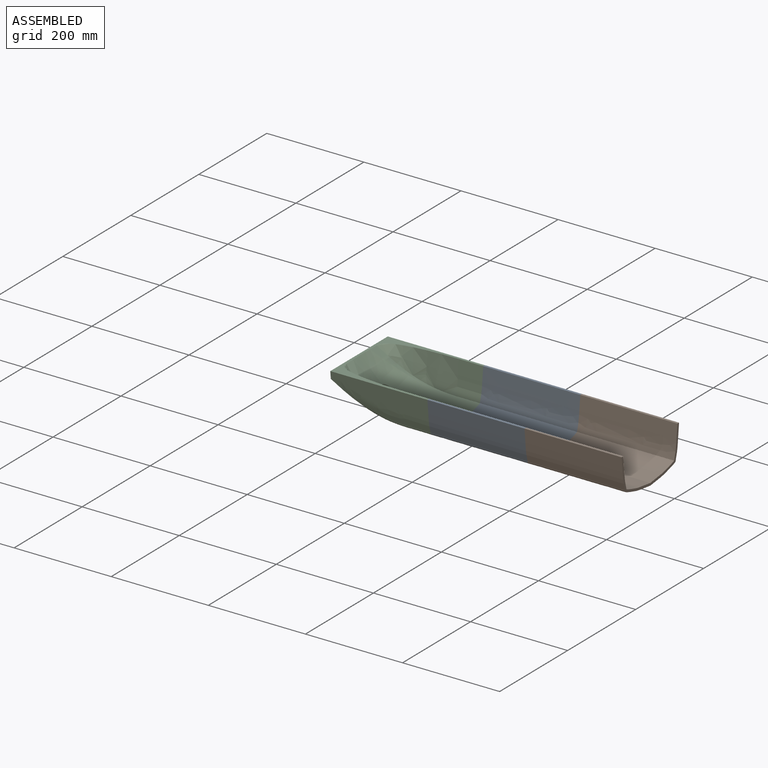
[diagram: assembled view]
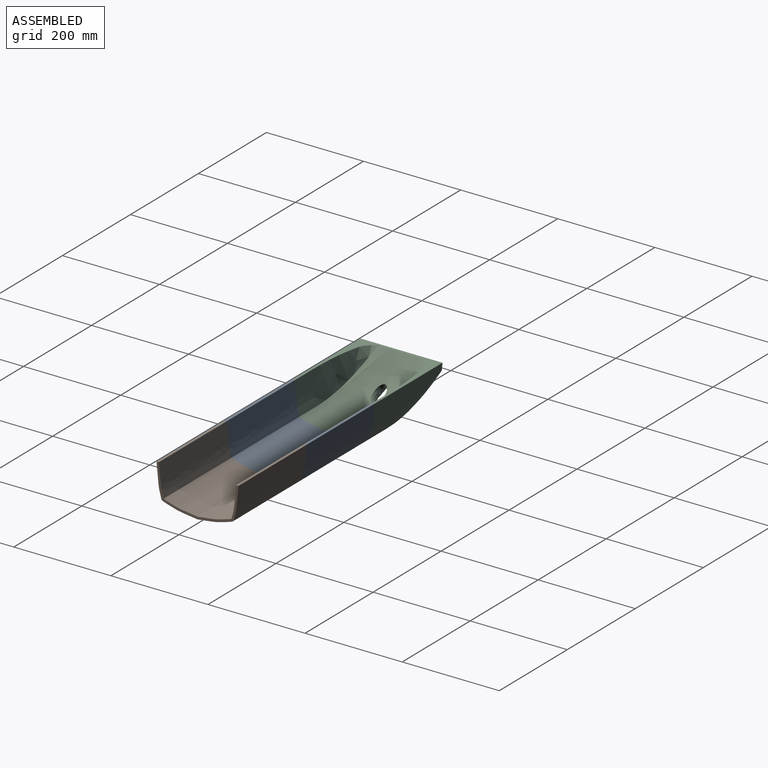
[diagram: assembled view, second angle]
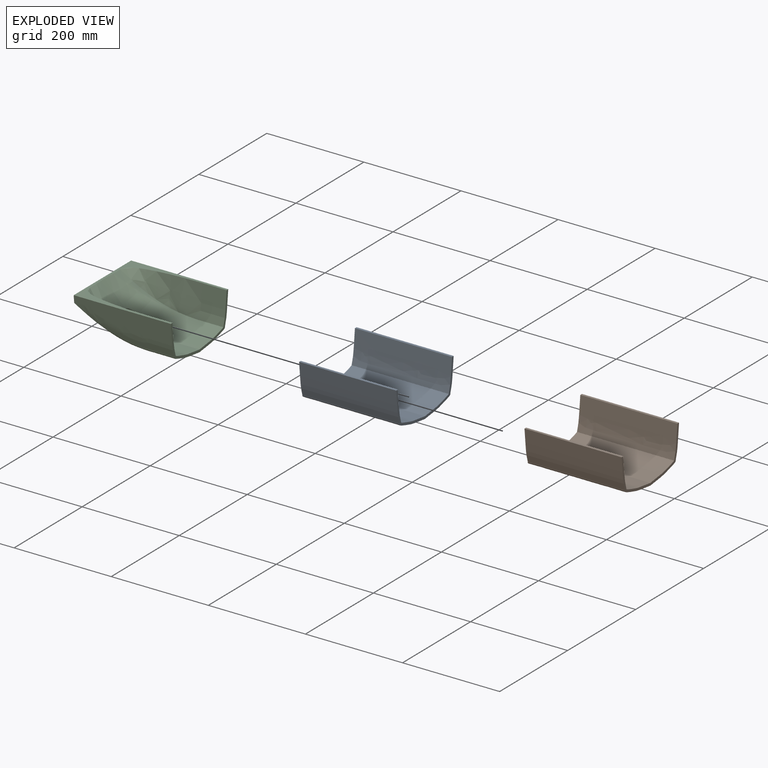
[diagram: exploded view]
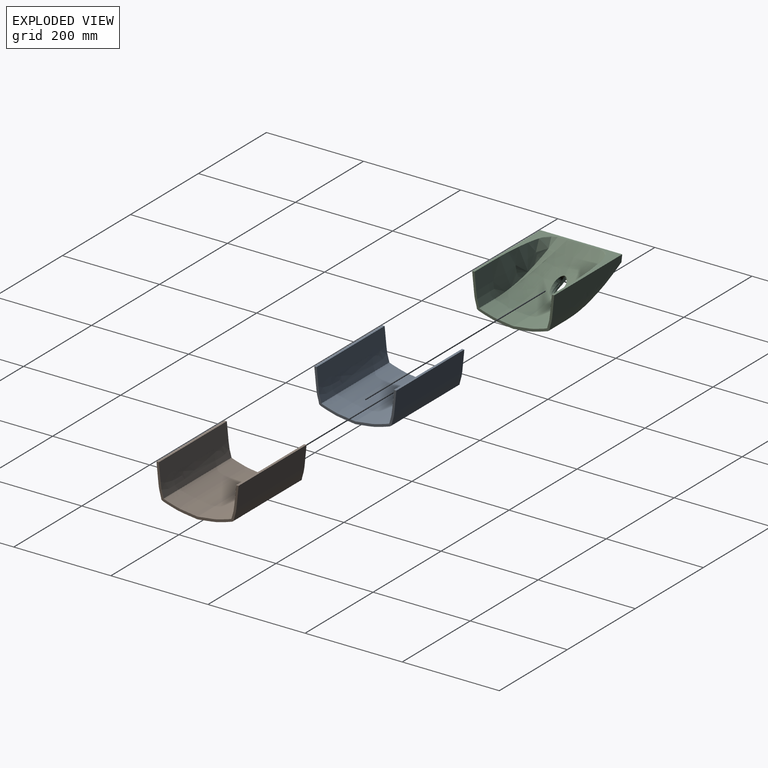
[diagram: exploded view, second angle]
ASSEMBLY  parts=3 mates=2
PART A: 22 faces, bbox 205.3x175.3x95.3 mm
  f0: plane 174.65x90.86mm, normal (-1,0,0), area 1387.7mm2, adj f2,f3,f4,f5,f6,f7,f16,f17
  f1: plane 174.76x91.6mm, normal (1,0,0), area 1408.3mm2, adj f2,f3,f4,f5,f6,f7,f12,f13
  f2: bspline ~200x69.05mm, area 13175.8mm2, adj f0,f1,f8,f12,f17,f21
  f3: bspline ~200x70mm, area 13168.8mm2, adj f0,f1,f7,f21
  f4: bspline ~200x69.05mm, area 13175.8mm2, adj f0,f1,f9,f14,f18,f20
  f5: bspline ~200x70mm, area 13168.8mm2, adj f0,f1,f6,f20
  f6: extruded ~200x75mm, area 15975.7mm2, adj f0,f1,f5,f7
  f7: extruded ~200x75mm, area 15975.7mm2, adj f0,f1,f3,f6
  f8: extruded ~190x0.1mm, area 19.6mm2, adj f2,f11,f12,f17
  f9: extruded ~190x0.1mm, area 19.6mm2, adj f4,f10,f14,f18
  f10: extruded ~190x70mm, area 13653.4mm2, adj f9,f11,f13,f19
  f11: extruded ~190x70mm, area 13653.4mm2, adj f8,f10,f15,f16
  f12: extruded ~5x0.1mm, area 0.5mm2, adj f1,f2,f8,f15
  f13: extruded ~70x14.85mm, area 359.2mm2, adj f1,f10,f14,f15
  f14: extruded ~5x0.1mm, area 0.5mm2, adj f1,f4,f9,f13
  f15: extruded ~70x14.85mm, area 359.2mm2, adj f1,f11,f12,f13
  f16: extruded ~70x14.85mm, area 359.2mm2, adj f0,f11,f17,f19
  f17: extruded ~5x0.1mm, area 0.5mm2, adj f0,f2,f8,f16
  f18: extruded ~5x0.1mm, area 0.5mm2, adj f0,f4,f9,f19
  f19: extruded ~70x14.85mm, area 359.2mm2, adj f0,f10,f16,f18
  f20: plane 200x4.82mm, normal (0,0,1), area 963.2mm2, adj f0,f1,f4,f5
  f21: plane 200x4.82mm, normal (0,0,1), area 963.3mm2, adj f0,f1,f2,f3
PART B: same geometry as A
PART C: 34 faces, bbox 251.7x221.7x141.7 mm
  f0: plane 174.65x90.86mm, normal (-1,0,0), area 1387.7mm2, adj f1,f2,f3,f4,f14,f15,f24,f25
  f1: bspline ~69.05x50mm, area 3294mm2, adj f0,f6,f16,f20,f25,f30
  f2: bspline ~70x50mm, area 3292.2mm2, adj f0,f13,f15,f30
  f3: bspline ~69.05x50mm, area 3294mm2, adj f0,f11,f17,f22,f26,f30
  f4: bspline ~70x50mm, area 3292.2mm2, adj f0,f12,f14,f30
  f5: plane 169.02x20.01mm, normal (1,0,0), area 2927.5mm2, adj f12,f13,f28,f29,f30
  f6: bspline ~144.7x69.64mm, area 4616mm2, adj f1,f7,f30
  f7: bspline ~150x70.1mm, area 1099.6mm2, adj f6,f8,f20,f30
  f8: bspline ~150x84.95mm, area 9413.9mm2, adj f7,f9,f23,f30,f32
  f9: bspline ~150x84.95mm, area 9413.9mm2, adj f8,f10,f21,f30,f33
  f10: bspline ~150x70.1mm, area 1099.6mm2, adj f9,f11,f22,f30
  f11: bspline ~144.7x69.64mm, area 4616mm2, adj f3,f10,f30
  f12: bspline ~150x70mm, area 7503.3mm2, adj f4,f5,f28,f30
  f13: bspline ~150x70mm, area 7502.9mm2, adj f2,f5,f29,f30
  f14: extruded ~75x50mm, area 3993.9mm2, adj f0,f4,f15,f28
  f15: extruded ~75x50mm, area 3993.9mm2, adj f0,f2,f14,f29
  f16: extruded ~40x0.1mm, area 4.1mm2, adj f1,f19,f20,f25
  f17: extruded ~40x0.1mm, area 4.1mm2, adj f3,f18,f22,f26
  f18: extruded ~70x40mm, area 2874.4mm2, adj f17,f19,f21,f27
  f19: extruded ~70x40mm, area 2874.4mm2, adj f16,f18,f23,f24
  f20: extruded ~5x0.1mm, area 0.5mm2, adj f1,f7,f16,f23
  f21: extruded ~70x14.85mm, area 359.2mm2, adj f9,f18,f22,f23
  f22: extruded ~5x0.1mm, area 0.5mm2, adj f3,f10,f17,f21
  f23: extruded ~70x14.85mm, area 359.2mm2, adj f8,f19,f20,f21
  f24: extruded ~70x14.85mm, area 359.2mm2, adj f0,f19,f25,f27
  f25: extruded ~5x0.1mm, area 0.5mm2, adj f0,f1,f16,f24
  f26: extruded ~5x0.1mm, area 0.5mm2, adj f0,f3,f17,f27
  f27: extruded ~70x14.85mm, area 359.2mm2, adj f0,f18,f24,f26
  f28: bspline ~150x83mm, area 13281.4mm2, adj f5,f12,f14,f29,f31
  f29: bspline ~150x83mm, area 13281.4mm2, adj f5,f13,f15,f28,f31
  f30: plane 251.66x220.66mm, normal (0,0,1), area 4504.4mm2, adj f0,f1,f2,f3,f4,f5,f6,f7
  f31: cylinder r=7.5mm len=44.71mm, axis (1,0,0), area 516.3mm2, adj f28,f29,f32,f33
  f32: bspline ~41.83x23.66mm, area 297.7mm2, adj f8,f31,f33
  f33: bspline ~41.87x23.71mm, area 297.7mm2, adj f9,f31,f32
PLACE A t=(-251.49,327.44,-156.07)mm
PLACE B t=(-51.49,327.44,-156.07)mm
PLACE C rot(axis=(0,0,1),180deg) t=(-251.49,477.44,-156.07)mm
MATE fastened A.f0 <-> C.f0  axis (-1,0,0) through (-251.49,402.44,-151.02)mm
MATE fastened A.f1 <-> B.f0  axis (1,0,0) through (-51.49,402.44,-151.02)mm
